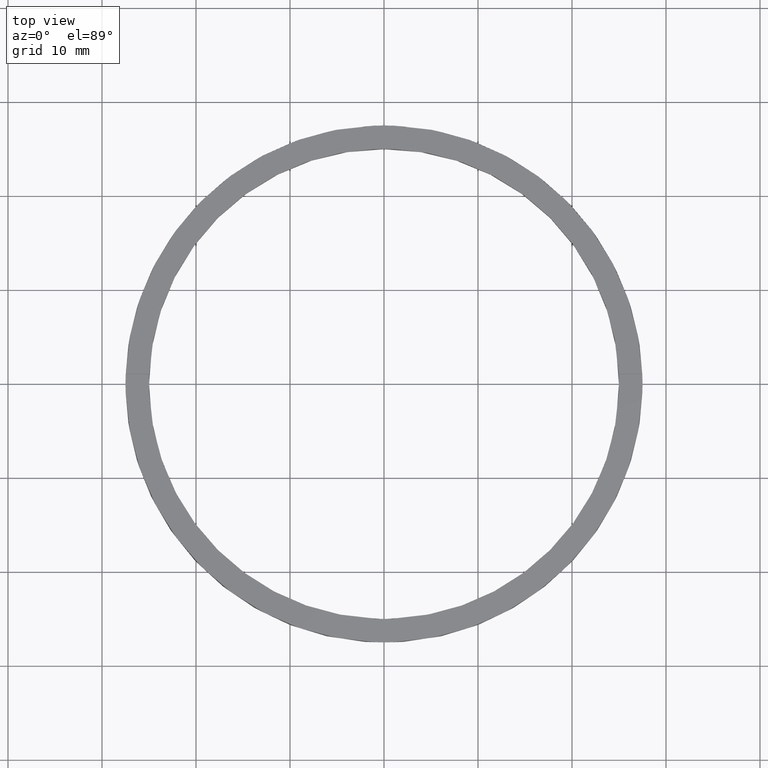
[diagram: clean part render]
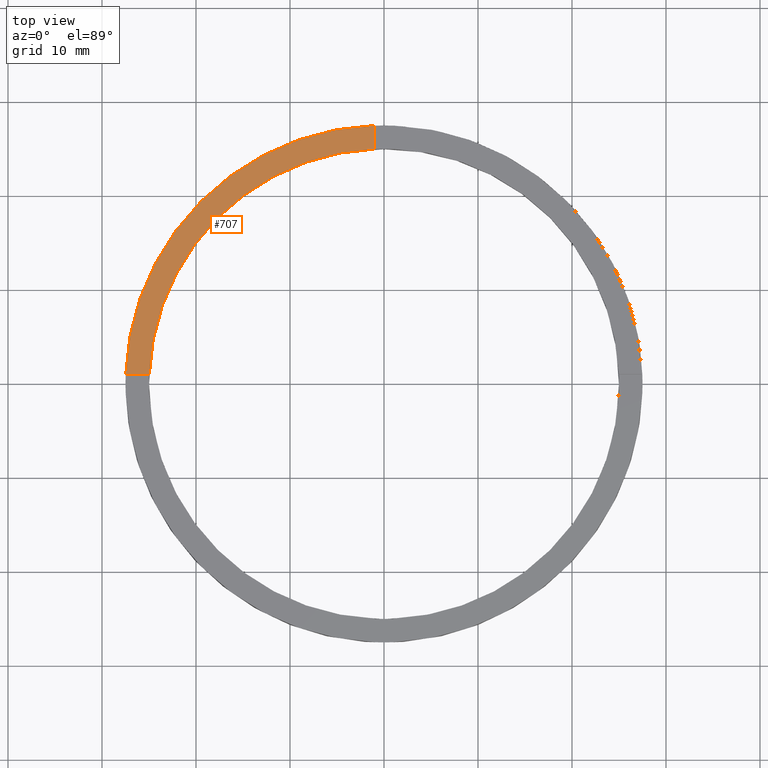
[diagram: same view with one face highlighted and labeled with its STEP entity id]
A machine part, top view. The second image highlights one B-rep face of the part: STEP entity #707.
In plain terms, the highlighted planar face has unit normal (0, 0, 1).
Its self-contained STEP definition (entity closure, byte-faithful):
#5 = LINE ( 'NONE', #133, #276 ) ;
#11 = EDGE_CURVE ( 'NONE', #80, #614, #544, .T. ) ;
#38 = CARTESIAN_POINT ( 'NONE',  ( 0.000000000000000000, 0.000000000000000000, 2.500000000000000000 ) ) ;
#46 = DIRECTION ( 'NONE',  ( 0.000000000000000000, 0.000000000000000000, 1.000000000000000000 ) ) ;
#53 = CARTESIAN_POINT ( 'NONE',  ( -1.000000000000026423, 27.48181216732259102, 2.500000000000000000 ) ) ;
#80 = VERTEX_POINT ( 'NONE', #53 ) ;
#83 = DIRECTION ( 'NONE',  ( 0.000000000000000000, 0.000000000000000000, 1.000000000000000000 ) ) ;
#84 = DIRECTION ( 'NONE',  ( 0.000000000000000000, 0.000000000000000000, 1.000000000000000000 ) ) ;
#133 = CARTESIAN_POINT ( 'NONE',  ( -17.50000000000018474, 0.9999999999999749090, 2.500000000000000000 ) ) ;
#153 = CARTESIAN_POINT ( 'NONE',  ( -24.97999199359359679, 0.9999999999999735767, 2.500000000000000000 ) ) ;
#157 = EDGE_CURVE ( 'NONE', #449, #614, #5, .T. ) ;
#218 = CARTESIAN_POINT ( 'NONE',  ( 0.000000000000000000, 0.000000000000000000, 2.500000000000000000 ) ) ;
#253 = LINE ( 'NONE', #590, #484 ) ;
#276 = VECTOR ( 'NONE', #687, 1000.000000000000000 ) ;
#329 = CARTESIAN_POINT ( 'NONE',  ( -27.48181216732259102, 0.9999999999999731326, 2.500000000000000000 ) ) ;
#330 = CARTESIAN_POINT ( 'NONE',  ( -1.000000000000026423, 24.97999199359359679, 2.500000000000000000 ) ) ;
#333 = DIRECTION ( 'NONE',  ( -0.000000000000000000, -1.000000000000000000, -0.000000000000000000 ) ) ;
#334 = ORIENTED_EDGE ( 'NONE', *, *, #11, .T. ) ;
#384 = ORIENTED_EDGE ( 'NONE', *, *, #670, .F. ) ;
#424 = CARTESIAN_POINT ( 'NONE',  ( 0.000000000000000000, 0.000000000000000000, 2.500000000000000000 ) ) ;
#426 = EDGE_LOOP ( 'NONE', ( #384, #334, #587, #635 ) ) ;
#449 = VERTEX_POINT ( 'NONE', #153 ) ;
#459 = DIRECTION ( 'NONE',  ( 1.000000000000000000, 0.000000000000000000, -0.000000000000000000 ) ) ;
#477 = AXIS2_PLACEMENT_3D ( 'NONE', #38, #83, #695 ) ;
#484 = VECTOR ( 'NONE', #333, 1000.000000000000000 ) ;
#487 = CIRCLE ( 'NONE', #477, 25.00000000000000000 ) ;
#544 = CIRCLE ( 'NONE', #667, 27.50000000000000000 ) ;
#579 = DIRECTION ( 'NONE',  ( 1.000000000000000000, 0.000000000000000000, 0.000000000000000000 ) ) ;
#586 = EDGE_CURVE ( 'NONE', #783, #449, #487, .T. ) ;
#587 = ORIENTED_EDGE ( 'NONE', *, *, #157, .F. ) ;
#590 = CARTESIAN_POINT ( 'NONE',  ( -1.000000000000026423, 17.50000000000000000, 2.500000000000000000 ) ) ;
#614 = VERTEX_POINT ( 'NONE', #329 ) ;
#635 = ORIENTED_EDGE ( 'NONE', *, *, #586, .F. ) ;
#667 = AXIS2_PLACEMENT_3D ( 'NONE', #424, #46, #579 ) ;
#670 = EDGE_CURVE ( 'NONE', #80, #783, #253, .T. ) ;
#687 = DIRECTION ( 'NONE',  ( -1.000000000000000000, -1.734723475976807341E-16, 0.000000000000000000 ) ) ;
#695 = DIRECTION ( 'NONE',  ( 1.000000000000000000, 0.000000000000000000, 0.000000000000000000 ) ) ;
#696 = PLANE ( 'NONE',  #705 ) ;
#705 = AXIS2_PLACEMENT_3D ( 'NONE', #218, #84, #459 ) ;
#707 = ADVANCED_FACE ( 'NONE', ( #751 ), #696, .T. ) ;
#751 = FACE_OUTER_BOUND ( 'NONE', #426, .T. ) ;
#783 = VERTEX_POINT ( 'NONE', #330 ) ;